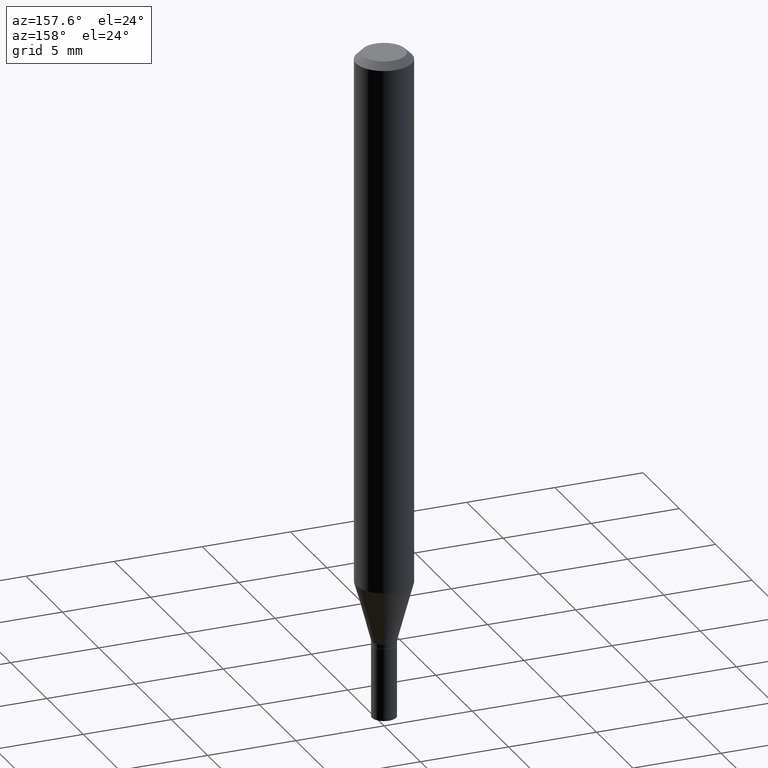
[diagram: clean part render]
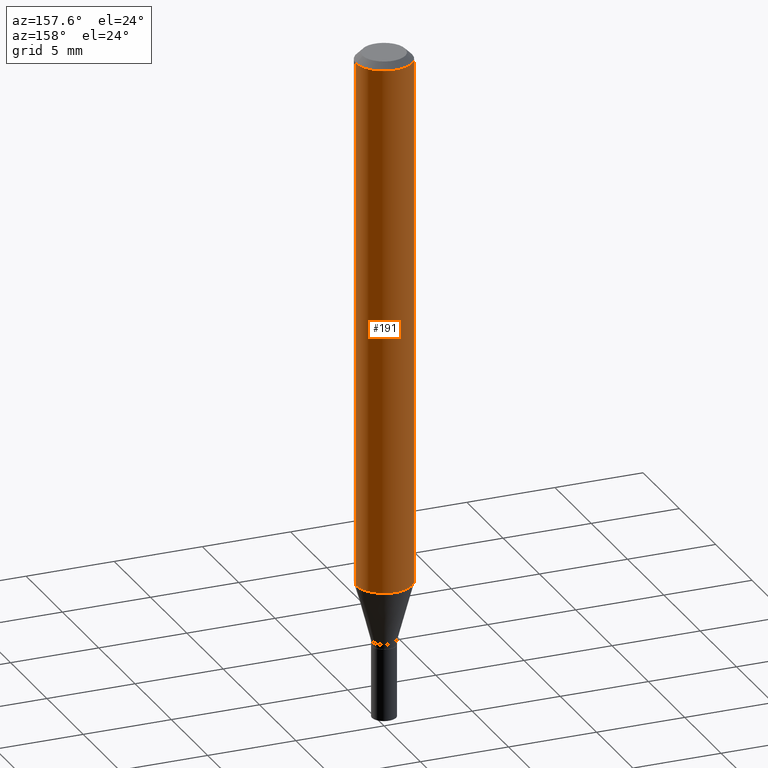
[diagram: same view with one face highlighted and labeled with its STEP entity id]
A machine part, auxiliary view. The second image highlights one B-rep face of the part: STEP entity #191.
In plain terms, the highlighted cylindrical surface (edge-blend (fillet) strip) has radius 1.5875 mm, axis along (-0, 0, 1).
Its self-contained STEP definition (entity closure, byte-faithful):
#15 = CARTESIAN_POINT ( 'NONE',  ( 3.668203209277705088E-31, -5.237222008264718399E-17, -0.01499999999999999944 ) ) ;
#25 = VERTEX_POINT ( 'NONE', #405 ) ;
#43 = DIRECTION ( 'NONE',  ( 1.000000000000000000, -6.982962677686266711E-15, 0.000000000000000000 ) ) ;
#47 = EDGE_CURVE ( 'NONE', #92, #25, #160, .T. ) ;
#64 = DIRECTION ( 'NONE',  ( -2.445468806185136597E-29, 3.491481338843145583E-15, 1.000000000000000000 ) ) ;
#73 = LINE ( 'NONE', #213, #307 ) ;
#78 = CYLINDRICAL_SURFACE ( 'NONE', #218, 0.06250000000000000000 ) ;
#79 = ORIENTED_EDGE ( 'NONE', *, *, #47, .T. ) ;
#92 = VERTEX_POINT ( 'NONE', #163 ) ;
#105 = DIRECTION ( 'NONE',  ( 1.000000000000000000, -6.982962677686262766E-15, 0.000000000000000000 ) ) ;
#108 = DIRECTION ( 'NONE',  ( -2.445468806185136597E-29, 3.491481338843145583E-15, 1.000000000000000000 ) ) ;
#116 = FACE_OUTER_BOUND ( 'NONE', #299, .T. ) ;
#124 = AXIS2_PLACEMENT_3D ( 'NONE', #248, #64, #105 ) ;
#130 = CARTESIAN_POINT ( 'NONE',  ( -0.06250000000000000000, 4.440892098500626162E-16, -3.074334431409316114E-30 ) ) ;
#132 = CIRCLE ( 'NONE', #401, 0.06250000000000000000 ) ;
#134 = DIRECTION ( 'NONE',  ( -2.445468806185136877E-29, 3.491481338843145188E-15, 1.000000000000000000 ) ) ;
#135 = VERTEX_POINT ( 'NONE', #137 ) ;
#137 = CARTESIAN_POINT ( 'NONE',  ( 0.06250000000000000000, -4.610543691205524908E-15, -1.195512196331304677 ) ) ;
#138 = ORIENTED_EDGE ( 'NONE', *, *, #236, .F. ) ;
#152 = ORIENTED_EDGE ( 'NONE', *, *, #223, .F. ) ;
#160 = LINE ( 'NONE', #130, #425 ) ;
#163 = CARTESIAN_POINT ( 'NONE',  ( -0.06250000000000000000, -3.730019314000071411E-15, -1.195512196331304677 ) ) ;
#164 = ORIENTED_EDGE ( 'NONE', *, *, #419, .T. ) ;
#191 = ADVANCED_FACE ( 'NONE', ( #116 ), #78, .T. ) ;
#213 = CARTESIAN_POINT ( 'NONE',  ( 0.06250000000000000000, -4.364351673553916694E-16, 3.047610484872459871E-30 ) ) ;
#218 = AXIS2_PLACEMENT_3D ( 'NONE', #219, #108, #353 ) ;
#219 = CARTESIAN_POINT ( 'NONE',  ( 0.000000000000000000, 0.000000000000000000, 0.000000000000000000 ) ) ;
#223 = EDGE_CURVE ( 'NONE', #242, #25, #132, .T. ) ;
#235 = CIRCLE ( 'NONE', #124, 0.06250000000000000000 ) ;
#236 = EDGE_CURVE ( 'NONE', #135, #242, #73, .T. ) ;
#242 = VERTEX_POINT ( 'NONE', #287 ) ;
#248 = CARTESIAN_POINT ( 'NONE',  ( 2.923587783542086622E-29, -4.174108523850133238E-15, -1.195512196331304677 ) ) ;
#250 = DIRECTION ( 'NONE',  ( -2.445468806185136597E-29, 3.491481338843145583E-15, 1.000000000000000000 ) ) ;
#287 = CARTESIAN_POINT ( 'NONE',  ( 0.06250000000000000000, -4.888073874380388472E-16, -0.01499999999999999944 ) ) ;
#299 = EDGE_LOOP ( 'NONE', ( #164, #79, #152, #138 ) ) ;
#307 = VECTOR ( 'NONE', #323, 39.37007874015748143 ) ;
#323 = DIRECTION ( 'NONE',  ( -2.445468806185136877E-29, 3.491481338843145188E-15, 1.000000000000000000 ) ) ;
#353 = DIRECTION ( 'NONE',  ( 1.000000000000000000, -6.982962677686266711E-15, 4.876176775795935793E-29 ) ) ;
#401 = AXIS2_PLACEMENT_3D ( 'NONE', #15, #250, #43 ) ;
#405 = CARTESIAN_POINT ( 'NONE',  ( -0.06250000000000000000, -1.669151162116327740E-15, -0.01499999999999999944 ) ) ;
#419 = EDGE_CURVE ( 'NONE', #135, #92, #235, .T. ) ;
#425 = VECTOR ( 'NONE', #134, 39.37007874015748143 ) ;